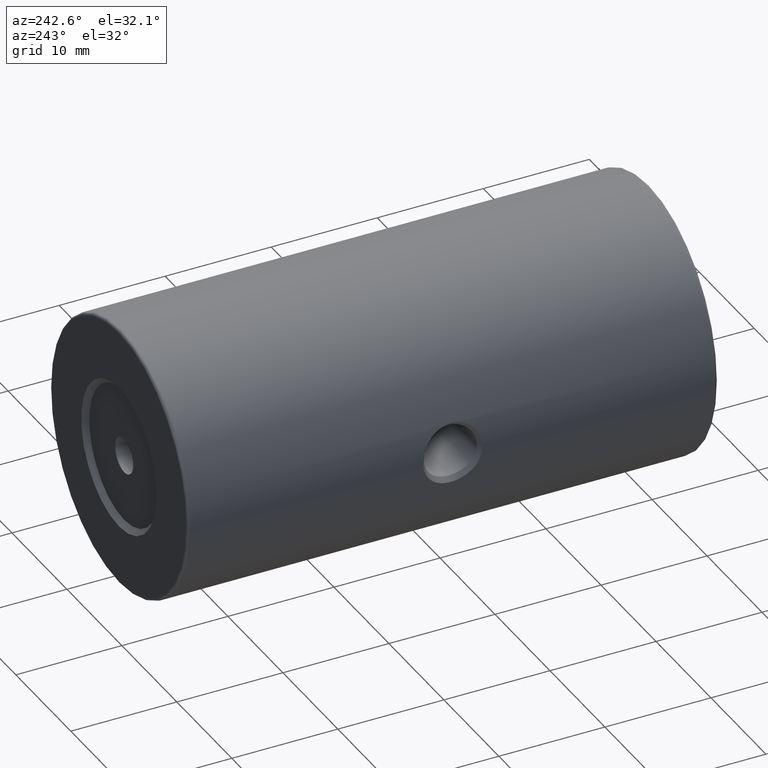
[diagram: clean part render]
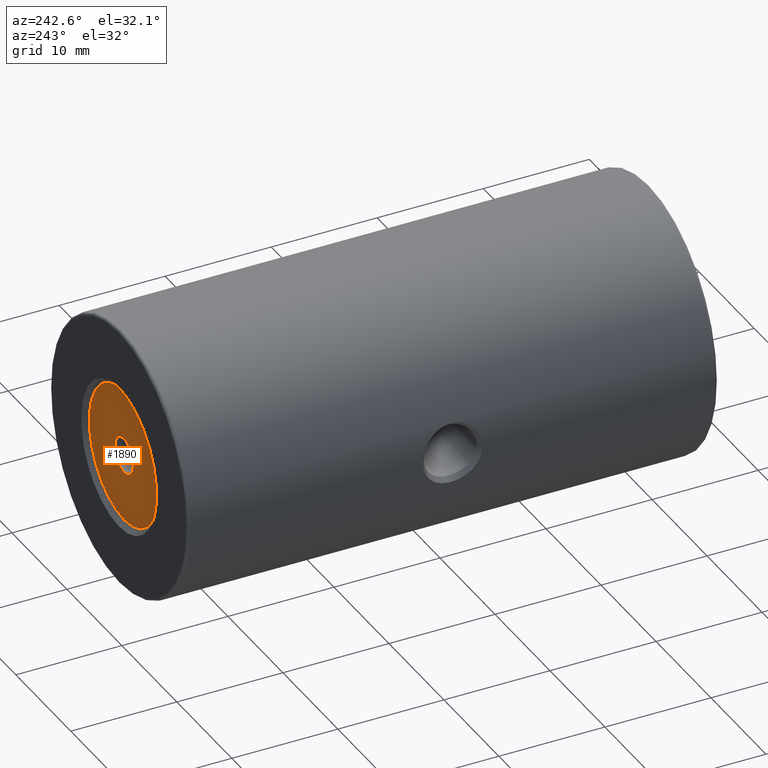
[diagram: same view with one face highlighted and labeled with its STEP entity id]
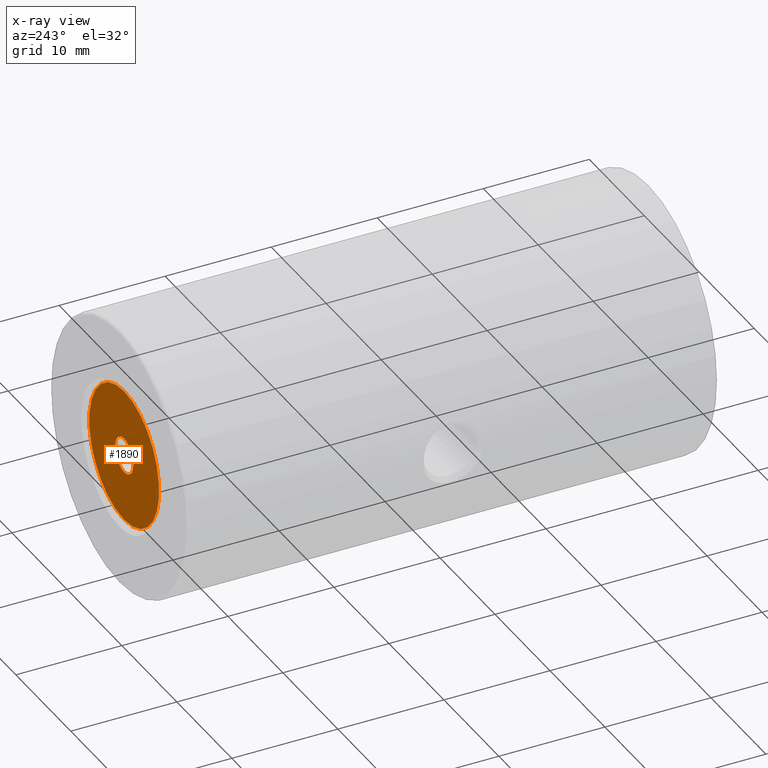
[diagram: x-ray of the same camera — body ghosted, the highlighted face saturated]
A machine part, auxiliary view. The second image highlights one B-rep face of the part: STEP entity #1890.
The next image is the same camera in x-ray: the body ghosted, the highlighted face saturated — about 0% of this face is hidden behind the body in this view.
In plain terms, the highlighted planar face has unit normal (0, 1, 0).
Its self-contained STEP definition (entity closure, byte-faithful):
#67 = DIRECTION ( 'NONE',  ( 0.0000000000000000000, 0.0000000000000000000, 1.000000000000000000 ) ) ;
#76 = ORIENTED_EDGE ( 'NONE', *, *, #1723, .T. ) ;
#97 = EDGE_CURVE ( 'NONE', #2674, #1992, #1036, .T. ) ;
#108 = CARTESIAN_POINT ( 'NONE',  ( -22.50520183104453409, 25.89825218476939028, 56.35000000000000142 ) ) ;
#143 = DIRECTION ( 'NONE',  ( 0.0000000000000000000, 1.000000000000000000, 0.0000000000000000000 ) ) ;
#283 = ORIENTED_EDGE ( 'NONE', *, *, #1102, .F. ) ;
#535 = ORIENTED_EDGE ( 'NONE', *, *, #97, .T. ) ;
#709 = DIRECTION ( 'NONE',  ( 0.0000000000000000000, -0.0000000000000000000, 1.000000000000000000 ) ) ;
#730 = DIRECTION ( 'NONE',  ( 0.0000000000000000000, 1.000000000000000000, 0.0000000000000000000 ) ) ;
#862 = CARTESIAN_POINT ( 'NONE',  ( -22.50520183104453409, 25.89825218476939028, 51.64999999999999858 ) ) ;
#935 = DIRECTION ( 'NONE',  ( 0.0000000000000000000, 0.0000000000000000000, 1.000000000000000000 ) ) ;
#1036 = CIRCLE ( 'NONE', #3109, 6.350000000000001421 ) ;
#1081 = CARTESIAN_POINT ( 'NONE',  ( -22.50520183104453409, 25.89825218476939028, 43.64999999999999858 ) ) ;
#1102 = EDGE_CURVE ( 'NONE', #1586, #3220, #1714, .T. ) ;
#1203 = FACE_BOUND ( 'NONE', #1977, .T. ) ;
#1319 = AXIS2_PLACEMENT_3D ( 'NONE', #2028, #3102, #1736 ) ;
#1390 = DIRECTION ( 'NONE',  ( 0.0000000000000000000, 1.000000000000000000, 0.0000000000000000000 ) ) ;
#1586 = VERTEX_POINT ( 'NONE', #2355 ) ;
#1657 = EDGE_LOOP ( 'NONE', ( #76, #535 ) ) ;
#1684 = CARTESIAN_POINT ( 'NONE',  ( -22.50520183104453409, 25.89825218476939028, 50.00000000000000000 ) ) ;
#1714 = CIRCLE ( 'NONE', #2159, 1.649999999999998579 ) ;
#1723 = EDGE_CURVE ( 'NONE', #1992, #2674, #2779, .T. ) ;
#1736 = DIRECTION ( 'NONE',  ( 0.0000000000000000000, 0.0000000000000000000, 1.000000000000000000 ) ) ;
#1890 = ADVANCED_FACE ( 'NONE', ( #1203, #2796 ), #2272, .T. ) ;
#1972 = DIRECTION ( 'NONE',  ( 0.0000000000000000000, 1.000000000000000000, 0.0000000000000000000 ) ) ;
#1977 = EDGE_LOOP ( 'NONE', ( #2241, #283 ) ) ;
#1992 = VERTEX_POINT ( 'NONE', #108 ) ;
#2028 = CARTESIAN_POINT ( 'NONE',  ( -22.50520183104453409, 25.89825218476939028, 50.00000000000000000 ) ) ;
#2055 = DIRECTION ( 'NONE',  ( 0.0000000000000000000, 0.0000000000000000000, 1.000000000000000000 ) ) ;
#2155 = CIRCLE ( 'NONE', #1319, 1.649999999999998579 ) ;
#2159 = AXIS2_PLACEMENT_3D ( 'NONE', #2731, #730, #2055 ) ;
#2160 = AXIS2_PLACEMENT_3D ( 'NONE', #2287, #143, #935 ) ;
#2241 = ORIENTED_EDGE ( 'NONE', *, *, #3384, .F. ) ;
#2272 = PLANE ( 'NONE',  #2939 ) ;
#2287 = CARTESIAN_POINT ( 'NONE',  ( -22.50520183104453409, 25.89825218476939028, 50.00000000000000000 ) ) ;
#2355 = CARTESIAN_POINT ( 'NONE',  ( -22.50520183104453409, 25.89825218476939028, 48.35000000000000142 ) ) ;
#2674 = VERTEX_POINT ( 'NONE', #1081 ) ;
#2731 = CARTESIAN_POINT ( 'NONE',  ( -22.50520183104453409, 25.89825218476939028, 50.00000000000000000 ) ) ;
#2779 = CIRCLE ( 'NONE', #2160, 6.350000000000001421 ) ;
#2796 = FACE_OUTER_BOUND ( 'NONE', #1657, .T. ) ;
#2939 = AXIS2_PLACEMENT_3D ( 'NONE', #3076, #1972, #709 ) ;
#3076 = CARTESIAN_POINT ( 'NONE',  ( -22.50520183104453409, 25.89825218476939028, 50.00000000000000000 ) ) ;
#3102 = DIRECTION ( 'NONE',  ( 0.0000000000000000000, 1.000000000000000000, 0.0000000000000000000 ) ) ;
#3109 = AXIS2_PLACEMENT_3D ( 'NONE', #1684, #1390, #67 ) ;
#3220 = VERTEX_POINT ( 'NONE', #862 ) ;
#3384 = EDGE_CURVE ( 'NONE', #3220, #1586, #2155, .T. ) ;